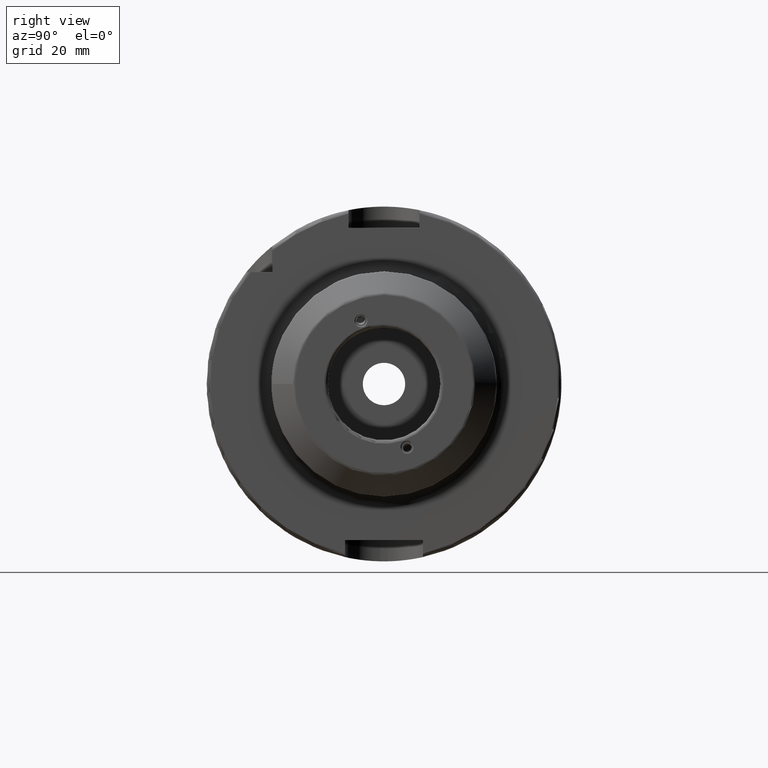
[diagram: clean part render]
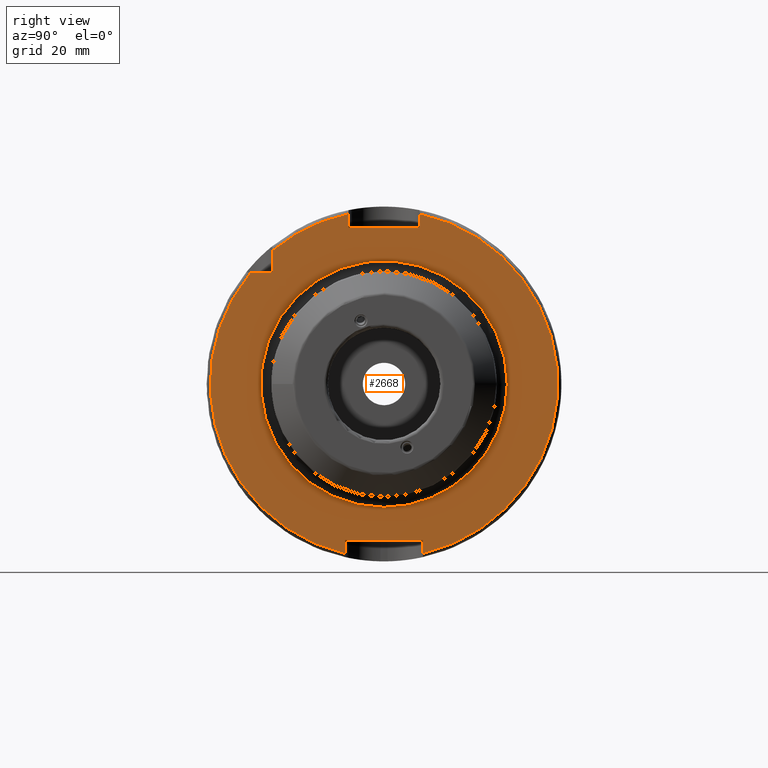
[diagram: same view with one face highlighted and labeled with its STEP entity id]
A machine part, right view. The second image highlights one B-rep face of the part: STEP entity #2668.
In plain terms, the highlighted planar face has unit normal (1, 0, 0).
Its self-contained STEP definition (entity closure, byte-faithful):
#204=LINE('',#4549,#331);
#205=LINE('',#4553,#332);
#206=LINE('',#4555,#333);
#207=LINE('',#4557,#334);
#208=LINE('',#4561,#335);
#209=LINE('',#4563,#336);
#210=LINE('',#4565,#337);
#211=LINE('',#4568,#338);
#331=VECTOR('',#3293,10.);
#332=VECTOR('',#3296,10.);
#333=VECTOR('',#3297,10.);
#334=VECTOR('',#3298,10.);
#335=VECTOR('',#3301,10.);
#336=VECTOR('',#3302,10.);
#337=VECTOR('',#3303,10.);
#338=VECTOR('',#3306,10.);
#488=FACE_BOUND('',#681,.T.);
#532=FACE_OUTER_BOUND('',#680,.T.);
#680=EDGE_LOOP('',(#1903,#1904,#1905,#1906,#1907,#1908,#1909,#1910,#1911,
#1912,#1913));
#681=EDGE_LOOP('',(#1914,#1915));
#843=CIRCLE('',#2859,34.75);
#844=CIRCLE('',#2860,34.75);
#850=CIRCLE('',#2868,49.);
#851=CIRCLE('',#2869,49.);
#852=CIRCLE('',#2870,49.);
#1068=VERTEX_POINT('',#4528);
#1069=VERTEX_POINT('',#4530);
#1074=VERTEX_POINT('',#4547);
#1075=VERTEX_POINT('',#4548);
#1076=VERTEX_POINT('',#4550);
#1077=VERTEX_POINT('',#4552);
#1078=VERTEX_POINT('',#4554);
#1079=VERTEX_POINT('',#4556);
#1080=VERTEX_POINT('',#4558);
#1081=VERTEX_POINT('',#4560);
#1082=VERTEX_POINT('',#4562);
#1083=VERTEX_POINT('',#4564);
#1084=VERTEX_POINT('',#4566);
#1388=EDGE_CURVE('',#1068,#1069,#843,.T.);
#1389=EDGE_CURVE('',#1069,#1068,#844,.T.);
#1398=EDGE_CURVE('',#1074,#1075,#204,.T.);
#1399=EDGE_CURVE('',#1075,#1076,#850,.T.);
#1400=EDGE_CURVE('',#1076,#1077,#205,.T.);
#1401=EDGE_CURVE('',#1077,#1078,#206,.T.);
#1402=EDGE_CURVE('',#1078,#1079,#207,.T.);
#1403=EDGE_CURVE('',#1079,#1080,#851,.T.);
#1404=EDGE_CURVE('',#1080,#1081,#208,.T.);
#1405=EDGE_CURVE('',#1081,#1082,#209,.T.);
#1406=EDGE_CURVE('',#1082,#1083,#210,.T.);
#1407=EDGE_CURVE('',#1083,#1084,#852,.T.);
#1408=EDGE_CURVE('',#1084,#1074,#211,.T.);
#1903=ORIENTED_EDGE('',*,*,#1398,.T.);
#1904=ORIENTED_EDGE('',*,*,#1399,.T.);
#1905=ORIENTED_EDGE('',*,*,#1400,.T.);
#1906=ORIENTED_EDGE('',*,*,#1401,.T.);
#1907=ORIENTED_EDGE('',*,*,#1402,.T.);
#1908=ORIENTED_EDGE('',*,*,#1403,.T.);
#1909=ORIENTED_EDGE('',*,*,#1404,.T.);
#1910=ORIENTED_EDGE('',*,*,#1405,.T.);
#1911=ORIENTED_EDGE('',*,*,#1406,.T.);
#1912=ORIENTED_EDGE('',*,*,#1407,.T.);
#1913=ORIENTED_EDGE('',*,*,#1408,.T.);
#1914=ORIENTED_EDGE('',*,*,#1389,.F.);
#1915=ORIENTED_EDGE('',*,*,#1388,.F.);
#2605=PLANE('',#2867);
#2668=ADVANCED_FACE('',(#532,#488),#2605,.T.);
#2859=AXIS2_PLACEMENT_3D('',#4531,#3272,#3273);
#2860=AXIS2_PLACEMENT_3D('',#4532,#3274,#3275);
#2867=AXIS2_PLACEMENT_3D('',#4546,#3291,#3292);
#2868=AXIS2_PLACEMENT_3D('',#4551,#3294,#3295);
#2869=AXIS2_PLACEMENT_3D('',#4559,#3299,#3300);
#2870=AXIS2_PLACEMENT_3D('',#4567,#3304,#3305);
#3272=DIRECTION('center_axis',(1.,0.,0.));
#3273=DIRECTION('ref_axis',(0.,-1.,-1.22464679914735E-16));
#3274=DIRECTION('center_axis',(1.,0.,0.));
#3275=DIRECTION('ref_axis',(0.,-1.,-1.22464679914735E-16));
#3291=DIRECTION('center_axis',(1.,0.,0.));
#3292=DIRECTION('ref_axis',(0.,0.,-1.));
#3293=DIRECTION('',(0.,-1.,0.));
#3294=DIRECTION('center_axis',(1.,0.,0.));
#3295=DIRECTION('ref_axis',(0.,0.,-1.));
#3296=DIRECTION('',(0.,0.,1.));
#3297=DIRECTION('',(0.,1.,0.));
#3298=DIRECTION('',(0.,0.,-1.));
#3299=DIRECTION('center_axis',(1.,0.,0.));
#3300=DIRECTION('ref_axis',(0.,0.,-1.));
#3301=DIRECTION('',(0.,0.,-1.));
#3302=DIRECTION('',(0.,-1.,0.));
#3303=DIRECTION('',(0.,0.,1.));
#3304=DIRECTION('center_axis',(1.,0.,0.));
#3305=DIRECTION('ref_axis',(0.,0.,-1.));
#3306=DIRECTION('',(0.,0.,-1.));
#4528=CARTESIAN_POINT('',(29.,-4.25564762703705E-15,-34.75));
#4530=CARTESIAN_POINT('',(29.,34.75,8.5112952540741E-15));
#4531=CARTESIAN_POINT('Origin',(29.,0.,0.));
#4532=CARTESIAN_POINT('Origin',(29.,0.,0.));
#4546=CARTESIAN_POINT('Origin',(29.,0.,0.));
#4547=CARTESIAN_POINT('',(29.,-31.5,31.5));
#4548=CARTESIAN_POINT('',(29.,-37.5333185316726,31.5));
#4549=CARTESIAN_POINT('',(29.,-18.25,31.5));
#4550=CARTESIAN_POINT('',(29.,-11.,-47.7493455452533));
#4551=CARTESIAN_POINT('Origin',(29.,0.,0.));
#4552=CARTESIAN_POINT('',(29.,-11.,-44.));
#4553=CARTESIAN_POINT('',(29.,-11.,-22.));
#4554=CARTESIAN_POINT('',(29.,11.,-44.));
#4555=CARTESIAN_POINT('',(29.,-5.55111512312578E-16,-44.));
#4556=CARTESIAN_POINT('',(29.,11.,-47.7493455452533));
#4557=CARTESIAN_POINT('',(29.,11.,-22.));
#4558=CARTESIAN_POINT('',(29.,10.,47.9687398208458));
#4559=CARTESIAN_POINT('Origin',(29.,0.,0.));
#4560=CARTESIAN_POINT('',(29.,10.,44.));
#4561=CARTESIAN_POINT('',(29.,10.,22.));
#4562=CARTESIAN_POINT('',(29.,-10.,44.));
#4563=CARTESIAN_POINT('',(29.,0.,44.));
#4564=CARTESIAN_POINT('',(29.,-10.,47.9687398208458));
#4565=CARTESIAN_POINT('',(29.,-10.,22.));
#4566=CARTESIAN_POINT('',(29.,-31.5,37.5333185316726));
#4567=CARTESIAN_POINT('Origin',(29.,0.,0.));
#4568=CARTESIAN_POINT('',(29.,-31.5,15.75));